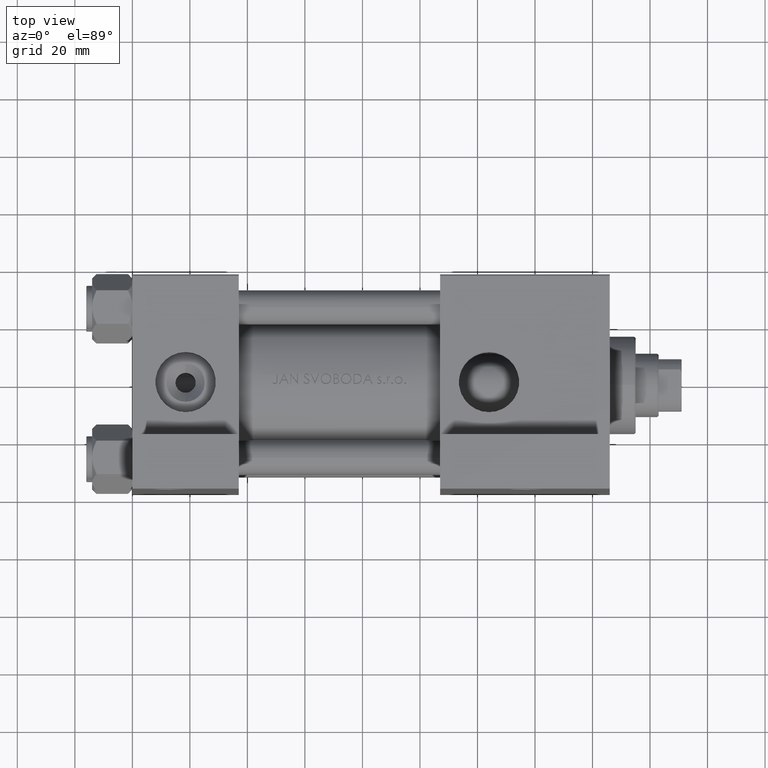
[diagram: clean part render]
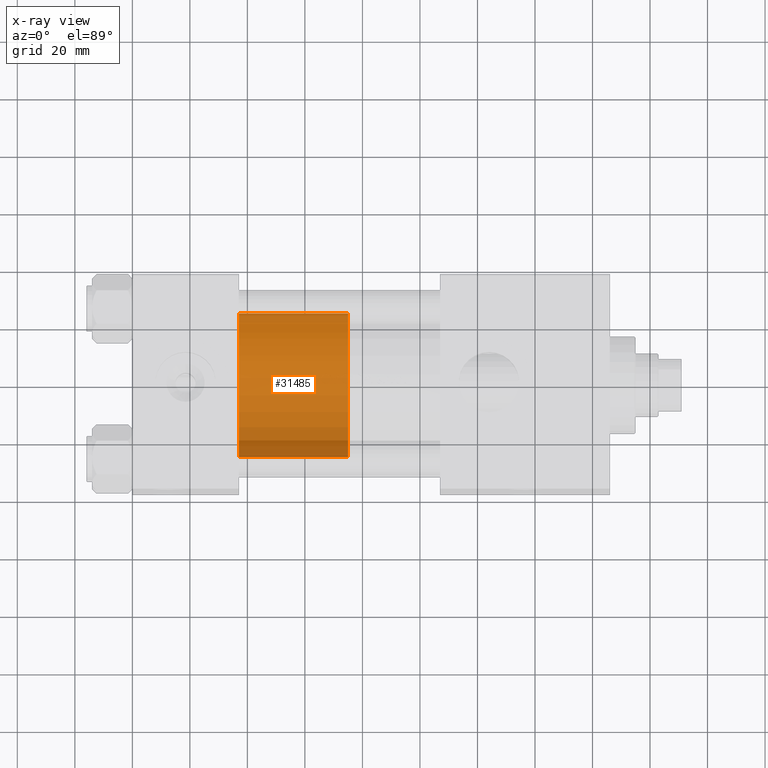
[diagram: x-ray — body ghosted, one internal face saturated and labeled with its STEP entity id]
A machine part, top view, then the same camera in x-ray: the body is ghosted and one INTERNAL B-rep face — a face not visible from any outside direction — is saturated and labeled: STEP entity #31485.
In plain terms, the highlighted cylindrical surface (partial cylindrical patch) has radius 25 mm, axis along (-1, 0, 0).
Its self-contained STEP definition (entity closure, byte-faithful):
#636 = CARTESIAN_POINT ( 'NONE',  ( -25.00000000000000000, 0.000000000000000000, 38.00000000000000000 ) ) ;
#988 = DIRECTION ( 'NONE',  ( -0.000000000000000000, -0.000000000000000000, -1.000000000000000000 ) ) ;
#1157 = CARTESIAN_POINT ( 'NONE',  ( 25.00000000000000000, 3.061616997868383043E-15, 38.00000000000000000 ) ) ;
#2590 = CARTESIAN_POINT ( 'NONE',  ( 0.000000000000000000, 0.000000000000000000, 38.00000000000000000 ) ) ;
#5137 = CARTESIAN_POINT ( 'NONE',  ( 0.000000000000000000, 0.000000000000000000, 0.000000000000000000 ) ) ;
#10026 = DIRECTION ( 'NONE',  ( -0.000000000000000000, -0.000000000000000000, -1.000000000000000000 ) ) ;
#11388 = VERTEX_POINT ( 'NONE', #14695 ) ;
#14695 = CARTESIAN_POINT ( 'NONE',  ( 25.00000000000000000, 3.061616997868383043E-15, 0.000000000000000000 ) ) ;
#15827 = DIRECTION ( 'NONE',  ( -0.000000000000000000, -0.000000000000000000, -1.000000000000000000 ) ) ;
#17777 = DIRECTION ( 'NONE',  ( 1.000000000000000000, 0.000000000000000000, 0.000000000000000000 ) ) ;
#18265 = DIRECTION ( 'NONE',  ( 0.000000000000000000, 0.000000000000000000, 1.000000000000000000 ) ) ;
#19421 = DIRECTION ( 'NONE',  ( -1.000000000000000000, 0.000000000000000000, 0.000000000000000000 ) ) ;
#19753 = CIRCLE ( 'NONE', #26098, 25.00000000000000000 ) ;
#19890 = AXIS2_PLACEMENT_3D ( 'NONE', #35126, #988, #19421 ) ;
#20651 = EDGE_CURVE ( 'NONE', #41808, #38950, #38499, .T. ) ;
#20808 = DIRECTION ( 'NONE',  ( 1.000000000000000000, 0.000000000000000000, 0.000000000000000000 ) ) ;
#22191 = CARTESIAN_POINT ( 'NONE',  ( 25.00000000000000000, 3.061616997868383043E-15, 38.00000000000000000 ) ) ;
#22915 = EDGE_LOOP ( 'NONE', ( #40900, #44288, #38928, #40438 ) ) ;
#24428 = EDGE_CURVE ( 'NONE', #36195, #41808, #19753, .T. ) ;
#24460 = CARTESIAN_POINT ( 'NONE',  ( -25.00000000000000000, 0.000000000000000000, 0.000000000000000000 ) ) ;
#26098 = AXIS2_PLACEMENT_3D ( 'NONE', #2590, #18265, #17777 ) ;
#29985 = VECTOR ( 'NONE', #15827, 1000.000000000000000 ) ;
#31485 = ADVANCED_FACE ( 'NONE', ( #38363 ), #35365, .T. ) ;
#34378 = EDGE_CURVE ( 'NONE', #36195, #11388, #48605, .T. ) ;
#34592 = CIRCLE ( 'NONE', #43336, 25.00000000000000000 ) ;
#35126 = CARTESIAN_POINT ( 'NONE',  ( 0.000000000000000000, 0.000000000000000000, 38.00000000000000000 ) ) ;
#35365 = CYLINDRICAL_SURFACE ( 'NONE', #19890, 25.00000000000000000 ) ;
#35769 = DIRECTION ( 'NONE',  ( 0.000000000000000000, 0.000000000000000000, 1.000000000000000000 ) ) ;
#36195 = VERTEX_POINT ( 'NONE', #1157 ) ;
#38363 = FACE_OUTER_BOUND ( 'NONE', #22915, .T. ) ;
#38499 = LINE ( 'NONE', #636, #29985 ) ;
#38928 = ORIENTED_EDGE ( 'NONE', *, *, #44076, .T. ) ;
#38950 = VERTEX_POINT ( 'NONE', #24460 ) ;
#40438 = ORIENTED_EDGE ( 'NONE', *, *, #20651, .F. ) ;
#40900 = ORIENTED_EDGE ( 'NONE', *, *, #24428, .F. ) ;
#41808 = VERTEX_POINT ( 'NONE', #44254 ) ;
#43028 = VECTOR ( 'NONE', #10026, 1000.000000000000000 ) ;
#43336 = AXIS2_PLACEMENT_3D ( 'NONE', #5137, #35769, #20808 ) ;
#44076 = EDGE_CURVE ( 'NONE', #11388, #38950, #34592, .T. ) ;
#44254 = CARTESIAN_POINT ( 'NONE',  ( -25.00000000000000000, 0.000000000000000000, 38.00000000000000000 ) ) ;
#44288 = ORIENTED_EDGE ( 'NONE', *, *, #34378, .T. ) ;
#48605 = LINE ( 'NONE', #22191, #43028 ) ;